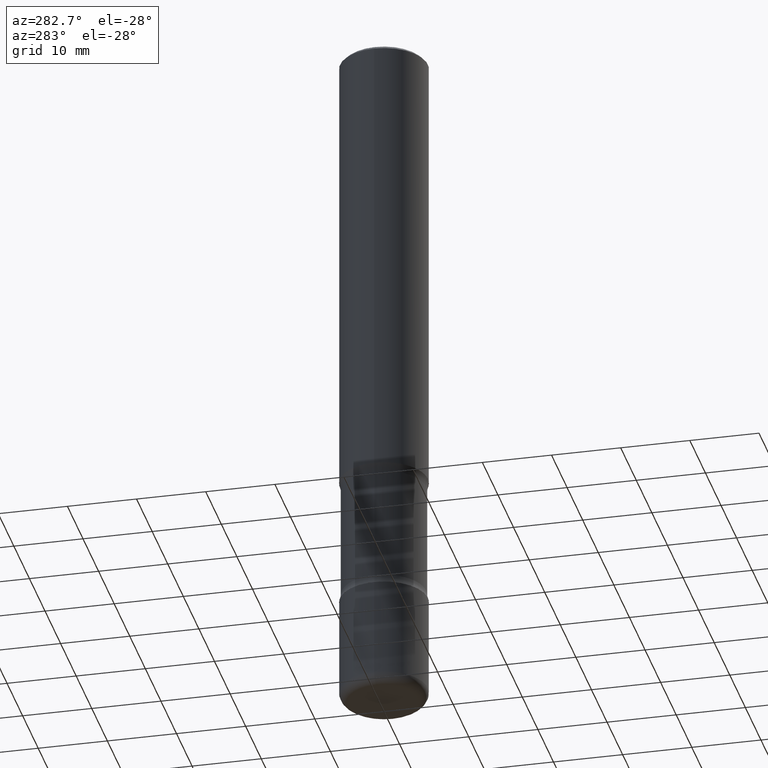
[diagram: clean part render]
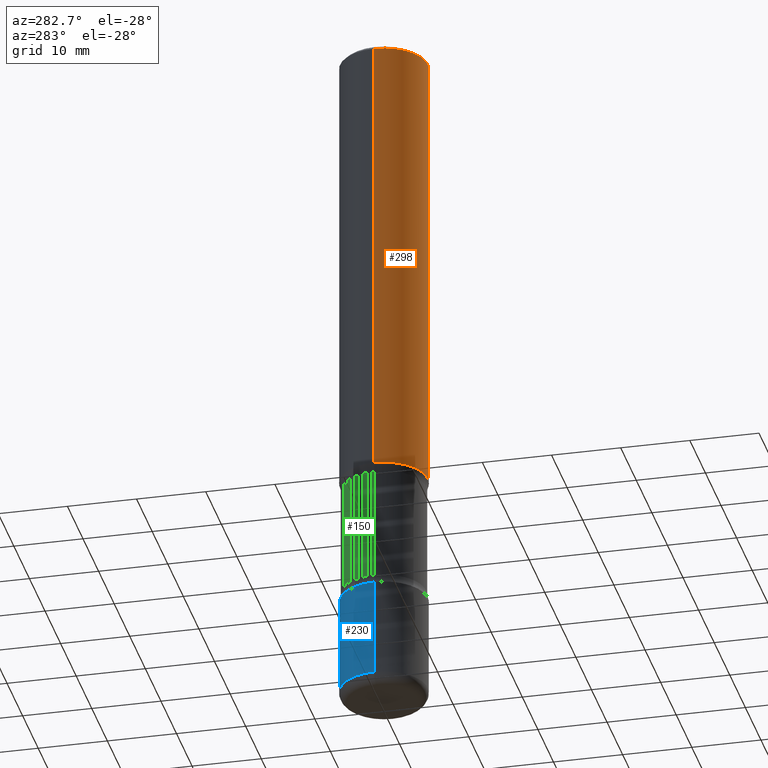
[diagram: same view with three faces highlighted in distinct colors, each labeled with its STEP entity id]
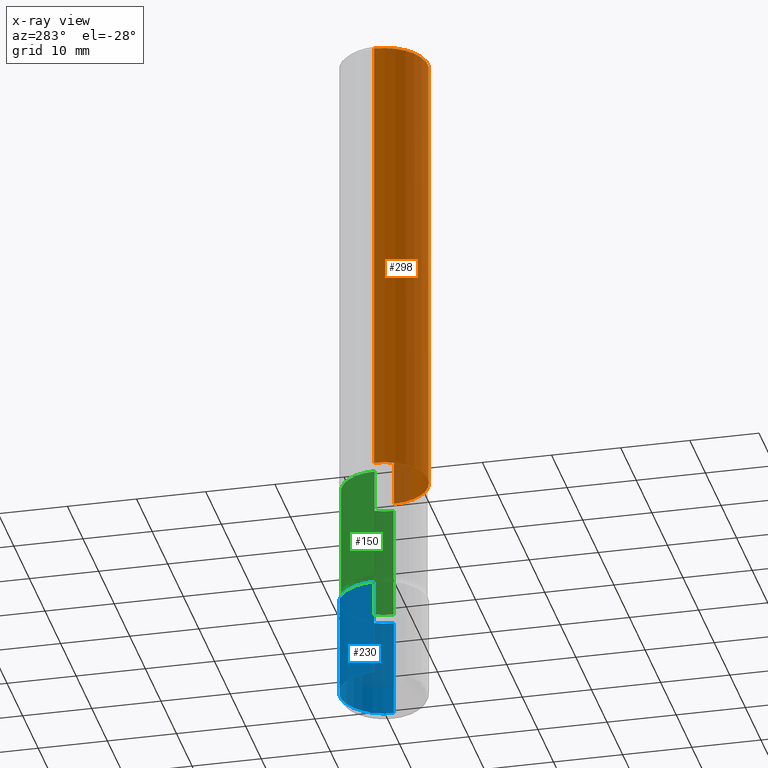
[diagram: x-ray of the same camera — body ghosted, the three highlighted faces saturated]
A machine part, auxiliary view with three faces highlighted in distinct colors.
The next image is the same camera in x-ray (body ghosted, the three faces saturated) — at least one of them is partly hidden behind the body in this view.
Their STEP definitions:

[orange] entity #298 — the highlighted cylindrical surface (partial cylindrical patch) has radius 6.35 mm, axis along (-0, 0, 1).
#17 = VECTOR ( 'NONE', #636, 39.37007874015748143 ) ;
#42 = CARTESIAN_POINT ( 'NONE',  ( 0.2500000000000000000, -1.091087918388482487E-14, -2.625000000000000000 ) ) ;
#152 = VERTEX_POINT ( 'NONE', #360 ) ;
#182 = VERTEX_POINT ( 'NONE', #42 ) ;
#188 = DIRECTION ( 'NONE',  ( 1.000000000000000000, -6.982962677686266711E-15, 4.876176775795935793E-29 ) ) ;
#212 = AXIS2_PLACEMENT_3D ( 'NONE', #629, #626, #188 ) ;
#214 = ORIENTED_EDGE ( 'NONE', *, *, #705, .F. ) ;
#246 = FACE_OUTER_BOUND ( 'NONE', #439, .T. ) ;
#277 = LINE ( 'NONE', #395, #733 ) ;
#298 = ADVANCED_FACE ( 'NONE', ( #246 ), #632, .T. ) ;
#342 = DIRECTION ( 'NONE',  ( -2.445468806185136877E-29, 3.491481338843145188E-15, 1.000000000000000000 ) ) ;
#360 = CARTESIAN_POINT ( 'NONE',  ( 0.2499999999999998057, -1.784954126219744611E-15, -0.02000000000000005593 ) ) ;
#362 = CARTESIAN_POINT ( 'NONE',  ( -0.2499999999999998057, 1.675911042644702196E-15, -0.02000000000000005593 ) ) ;
#365 = EDGE_CURVE ( 'NONE', #182, #152, #508, .T. ) ;
#377 = ORIENTED_EDGE ( 'NONE', *, *, #674, .T. ) ;
#380 = AXIS2_PLACEMENT_3D ( 'NONE', #755, #651, #641 ) ;
#390 = CARTESIAN_POINT ( 'NONE',  ( 0.2499999999999998890, -1.745740669421565889E-15, 1.219044193948983388E-29 ) ) ;
#395 = CARTESIAN_POINT ( 'NONE',  ( -0.2499999999999998890, 1.776356839400249676E-15, -1.229733772563726025E-29 ) ) ;
#439 = EDGE_LOOP ( 'NONE', ( #214, #377, #723, #616 ) ) ;
#465 = DIRECTION ( 'NONE',  ( -2.445468806185136597E-29, 3.491481338843145583E-15, 1.000000000000000000 ) ) ;
#469 = DIRECTION ( 'NONE',  ( 1.000000000000000000, -6.982962677686270655E-15, 0.000000000000000000 ) ) ;
#470 = VERTEX_POINT ( 'NONE', #362 ) ;
#505 = CIRCLE ( 'NONE', #712, 0.2500000000000000000 ) ;
#508 = LINE ( 'NONE', #390, #17 ) ;
#509 = VERTEX_POINT ( 'NONE', #692 ) ;
#512 = CARTESIAN_POINT ( 'NONE',  ( 6.419355616235983567E-29, -9.165138514463256612E-15, -2.625000000000000000 ) ) ;
#616 = ORIENTED_EDGE ( 'NONE', *, *, #689, .F. ) ;
#626 = DIRECTION ( 'NONE',  ( -2.445468806185136597E-29, 3.491481338843145583E-15, 1.000000000000000000 ) ) ;
#629 = CARTESIAN_POINT ( 'NONE',  ( 0.000000000000000000, 0.000000000000000000, 0.000000000000000000 ) ) ;
#632 = CYLINDRICAL_SURFACE ( 'NONE', #212, 0.2499999999999998890 ) ;
#636 = DIRECTION ( 'NONE',  ( -2.445468806185136877E-29, 3.491481338843145188E-15, 1.000000000000000000 ) ) ;
#641 = DIRECTION ( 'NONE',  ( 1.000000000000000000, -6.982962677686266711E-15, 0.000000000000000000 ) ) ;
#651 = DIRECTION ( 'NONE',  ( -2.445468806185136597E-29, 3.491481338843145583E-15, 1.000000000000000000 ) ) ;
#674 = EDGE_CURVE ( 'NONE', #509, #182, #505, .T. ) ;
#689 = EDGE_CURVE ( 'NONE', #470, #152, #702, .T. ) ;
#692 = CARTESIAN_POINT ( 'NONE',  ( -0.2500000000000000000, -2.841127231219807124E-15, -2.625000000000000000 ) ) ;
#702 = CIRCLE ( 'NONE', #380, 0.2499999999999998057 ) ;
#705 = EDGE_CURVE ( 'NONE', #509, #470, #277, .T. ) ;
#712 = AXIS2_PLACEMENT_3D ( 'NONE', #512, #465, #469 ) ;
#723 = ORIENTED_EDGE ( 'NONE', *, *, #365, .T. ) ;
#733 = VECTOR ( 'NONE', #342, 39.37007874015748143 ) ;
#755 = CARTESIAN_POINT ( 'NONE',  ( 4.890937612370287172E-31, -6.982962677686310098E-17, -0.02000000000000005593 ) ) ;

[blue] entity #230 — the highlighted cylindrical surface (partial cylindrical patch) has radius 6.35 mm, axis along (-0, 0, 1).
#1 = DIRECTION ( 'NONE',  ( -2.445468806185136597E-29, 3.491481338843145583E-15, 1.000000000000000000 ) ) ;
#26 = VECTOR ( 'NONE', #510, 39.37007874015748143 ) ;
#49 = CIRCLE ( 'NONE', #467, 0.2500000000000000000 ) ;
#51 = ORIENTED_EDGE ( 'NONE', *, *, #244, .T. ) ;
#60 = CARTESIAN_POINT ( 'NONE',  ( -0.2500000000000000000, 1.776356839400250465E-15, -1.229733772563726445E-29 ) ) ;
#70 = VERTEX_POINT ( 'NONE', #652 ) ;
#92 = DIRECTION ( 'NONE',  ( -2.445468806185136877E-29, 3.491481338843145188E-15, 1.000000000000000000 ) ) ;
#93 = DIRECTION ( 'NONE',  ( -2.445468806185136597E-29, 3.491481338843145583E-15, 1.000000000000000000 ) ) ;
#97 = LINE ( 'NONE', #478, #785 ) ;
#99 = VERTEX_POINT ( 'NONE', #479 ) ;
#189 = VERTEX_POINT ( 'NONE', #299 ) ;
#230 = ADVANCED_FACE ( 'NONE', ( #371 ), #549, .T. ) ;
#234 = AXIS2_PLACEMENT_3D ( 'NONE', #434, #555, #680 ) ;
#244 = EDGE_CURVE ( 'NONE', #189, #99, #251, .T. ) ;
#251 = CIRCLE ( 'NONE', #655, 0.2499999999999999722 ) ;
#273 = LINE ( 'NONE', #60, #26 ) ;
#299 = CARTESIAN_POINT ( 'NONE',  ( 0.2500000000000000555, -1.550217714446356069E-14, -3.939999999999999947 ) ) ;
#346 = ORIENTED_EDGE ( 'NONE', *, *, #358, .T. ) ;
#358 = EDGE_CURVE ( 'NONE', #99, #394, #273, .T. ) ;
#371 = FACE_OUTER_BOUND ( 'NONE', #445, .T. ) ;
#394 = VERTEX_POINT ( 'NONE', #768 ) ;
#434 = CARTESIAN_POINT ( 'NONE',  ( 0.000000000000000000, 0.000000000000000000, 0.000000000000000000 ) ) ;
#437 = CARTESIAN_POINT ( 'NONE',  ( 9.635147096369438236E-29, -1.375643647504199401E-14, -3.939999999999999947 ) ) ;
#438 = EDGE_CURVE ( 'NONE', #189, #70, #97, .T. ) ;
#445 = EDGE_LOOP ( 'NONE', ( #51, #346, #630, #774 ) ) ;
#467 = AXIS2_PLACEMENT_3D ( 'NONE', #500, #1, #625 ) ;
#478 = CARTESIAN_POINT ( 'NONE',  ( 0.2500000000000000000, -1.745740669421566678E-15, 1.219044193948983948E-29 ) ) ;
#479 = CARTESIAN_POINT ( 'NONE',  ( -0.2500000000000000555, -1.198007963564174355E-14, -3.939999999999999947 ) ) ;
#488 = EDGE_CURVE ( 'NONE', #70, #394, #49, .T. ) ;
#500 = CARTESIAN_POINT ( 'NONE',  ( 8.253457220874836014E-29, -1.178374951859561452E-14, -3.375000000000000000 ) ) ;
#510 = DIRECTION ( 'NONE',  ( -2.445468806185136877E-29, 3.491481338843145188E-15, 1.000000000000000000 ) ) ;
#534 = DIRECTION ( 'NONE',  ( 1.000000000000000000, -6.982962677686263555E-15, 0.000000000000000000 ) ) ;
#549 = CYLINDRICAL_SURFACE ( 'NONE', #234, 0.2500000000000000000 ) ;
#555 = DIRECTION ( 'NONE',  ( -2.445468806185136597E-29, 3.491481338843145583E-15, 1.000000000000000000 ) ) ;
#625 = DIRECTION ( 'NONE',  ( 1.000000000000000000, -6.982962677686262766E-15, 0.000000000000000000 ) ) ;
#630 = ORIENTED_EDGE ( 'NONE', *, *, #488, .F. ) ;
#652 = CARTESIAN_POINT ( 'NONE',  ( 0.2500000000000000000, -1.352949018801718119E-14, -3.375000000000000000 ) ) ;
#655 = AXIS2_PLACEMENT_3D ( 'NONE', #437, #93, #534 ) ;
#680 = DIRECTION ( 'NONE',  ( 1.000000000000000000, -6.982962677686266711E-15, 4.876176775795935793E-29 ) ) ;
#768 = CARTESIAN_POINT ( 'NONE',  ( -0.2500000000000000000, -1.099373615741855222E-14, -3.375000000000000000 ) ) ;
#774 = ORIENTED_EDGE ( 'NONE', *, *, #438, .F. ) ;
#785 = VECTOR ( 'NONE', #92, 39.37007874015748143 ) ;

[green] entity #150 — the highlighted cylindrical surface (partial cylindrical patch) has radius 6.096 mm, axis along (-0, 0, 1).
#31 = EDGE_CURVE ( 'NONE', #336, #109, #341, .T. ) ;
#33 = DIRECTION ( 'NONE',  ( -2.445468806185136877E-29, 3.491481338843145188E-15, 1.000000000000000000 ) ) ;
#34 = EDGE_CURVE ( 'NONE', #109, #787, #456, .T. ) ;
#46 = DIRECTION ( 'NONE',  ( -2.445468806185136597E-29, 3.491481338843145583E-15, 1.000000000000000000 ) ) ;
#54 = ORIENTED_EDGE ( 'NONE', *, *, #31, .F. ) ;
#108 = CYLINDRICAL_SURFACE ( 'NONE', #551, 0.2399999999999999356 ) ;
#109 = VERTEX_POINT ( 'NONE', #796 ) ;
#111 = CARTESIAN_POINT ( 'NONE',  ( 8.133654205733900913E-29, -1.161270256406331354E-14, -3.326010205144336318 ) ) ;
#116 = AXIS2_PLACEMENT_3D ( 'NONE', #290, #535, #205 ) ;
#125 = CARTESIAN_POINT ( 'NONE',  ( 0.2399999999999999634, -1.328861360670801692E-14, -3.326010205144336318 ) ) ;
#131 = ORIENTED_EDGE ( 'NONE', *, *, #34, .F. ) ;
#147 = CARTESIAN_POINT ( 'NONE',  ( 0.2399999999999999356, -1.084104955710796157E-14, -2.625000000000000000 ) ) ;
#150 = ADVANCED_FACE ( 'NONE', ( #422 ), #108, .T. ) ;
#154 = EDGE_CURVE ( 'NONE', #336, #253, #466, .T. ) ;
#205 = DIRECTION ( 'NONE',  ( 1.000000000000000000, -6.982962677686270655E-15, 0.000000000000000000 ) ) ;
#210 = CARTESIAN_POINT ( 'NONE',  ( -0.2399999999999999356, -7.459835948639017807E-15, -2.625000000000000000 ) ) ;
#231 = CARTESIAN_POINT ( 'NONE',  ( 6.419355616235983567E-29, -9.165138514463256612E-15, -2.625000000000000000 ) ) ;
#253 = VERTEX_POINT ( 'NONE', #693 ) ;
#290 = CARTESIAN_POINT ( 'NONE',  ( 6.539158631376917547E-29, -9.336185468995560747E-15, -2.673989794855663682 ) ) ;
#332 = ORIENTED_EDGE ( 'NONE', *, *, #154, .T. ) ;
#336 = VERTEX_POINT ( 'NONE', #125 ) ;
#341 = LINE ( 'NONE', #147, #784 ) ;
#422 = FACE_OUTER_BOUND ( 'NONE', #556, .T. ) ;
#441 = AXIS2_PLACEMENT_3D ( 'NONE', #111, #46, #665 ) ;
#456 = CIRCLE ( 'NONE', #116, 0.2399999999999999079 ) ;
#462 = CARTESIAN_POINT ( 'NONE',  ( -0.2399999999999999079, -7.509832289117163256E-15, -2.673989794855663682 ) ) ;
#466 = CIRCLE ( 'NONE', #441, 0.2399999999999999634 ) ;
#474 = ORIENTED_EDGE ( 'NONE', *, *, #773, .T. ) ;
#483 = DIRECTION ( 'NONE',  ( -2.445468806185136597E-29, 3.491481338843145583E-15, 1.000000000000000000 ) ) ;
#522 = LINE ( 'NONE', #210, #573 ) ;
#535 = DIRECTION ( 'NONE',  ( -2.445468806185136597E-29, 3.491481338843145583E-15, 1.000000000000000000 ) ) ;
#551 = AXIS2_PLACEMENT_3D ( 'NONE', #231, #483, #790 ) ;
#556 = EDGE_LOOP ( 'NONE', ( #332, #474, #131, #54 ) ) ;
#573 = VECTOR ( 'NONE', #578, 39.37007874015748143 ) ;
#578 = DIRECTION ( 'NONE',  ( -2.445468806185136877E-29, 3.491481338843145188E-15, 1.000000000000000000 ) ) ;
#665 = DIRECTION ( 'NONE',  ( 1.000000000000000000, -6.982962677686269077E-15, 0.000000000000000000 ) ) ;
#693 = CARTESIAN_POINT ( 'NONE',  ( -0.2399999999999999634, -9.957396338717218604E-15, -3.326010205144336318 ) ) ;
#773 = EDGE_CURVE ( 'NONE', #253, #787, #522, .T. ) ;
#784 = VECTOR ( 'NONE', #33, 39.37007874015748143 ) ;
#787 = VERTEX_POINT ( 'NONE', #462 ) ;
#790 = DIRECTION ( 'NONE',  ( 1.000000000000000000, -6.982962677686269866E-15, 0.000000000000000000 ) ) ;
#796 = CARTESIAN_POINT ( 'NONE',  ( 0.2399999999999999079, -1.101209651164026570E-14, -2.673989794855663682 ) ) ;